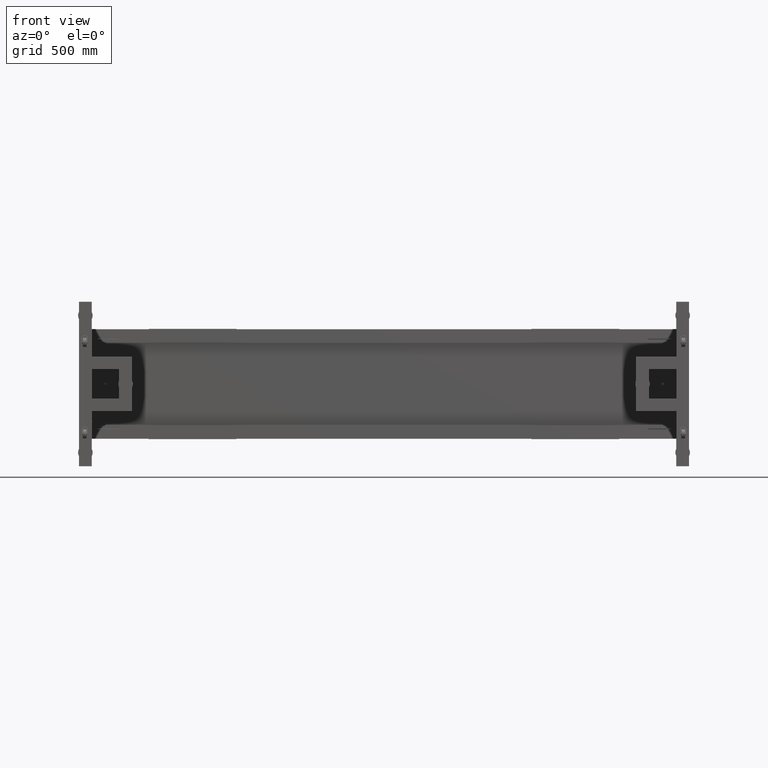
[diagram: clean part render]
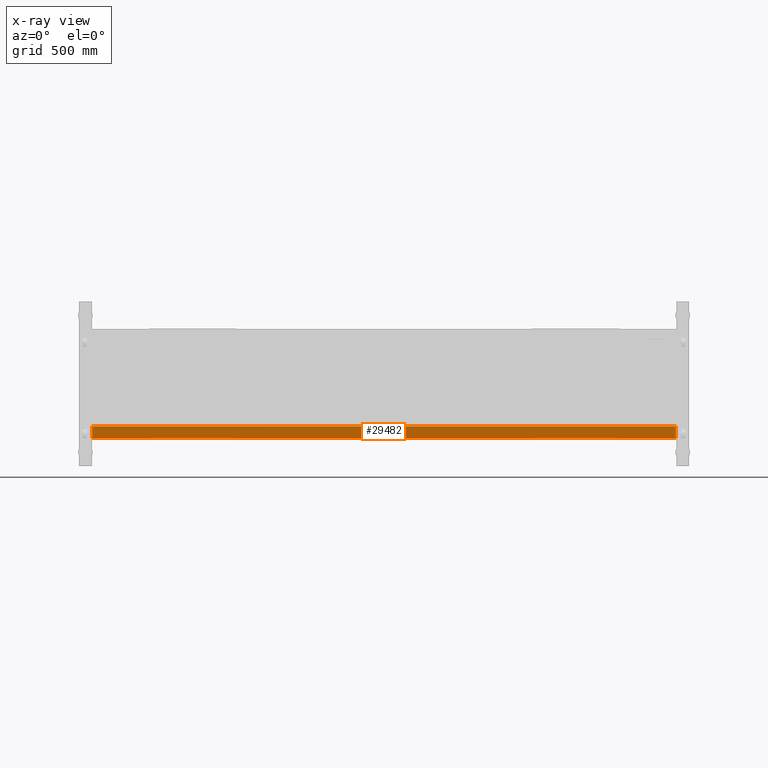
[diagram: x-ray — body ghosted, one internal face saturated and labeled with its STEP entity id]
A machine part, front view, then the same camera in x-ray: the body is ghosted and one INTERNAL B-rep face — a face not visible from any outside direction — is saturated and labeled: STEP entity #29482.
In plain terms, the highlighted planar face has unit normal (0, -1, -0).
Its self-contained STEP definition (entity closure, byte-faithful):
#4829 = CARTESIAN_POINT ( 'NONE',  ( 1929.827512562814718, 554.4410804020134265, -232.4999999999999147 ) ) ;
#12148 = VERTEX_POINT ( 'NONE', #38646 ) ;
#13832 = EDGE_CURVE ( 'NONE', #39517, #80249, #47157, .T. ) ;
#14170 = PLANE ( 'NONE',  #34813 ) ;
#16047 = EDGE_CURVE ( 'NONE', #12148, #74760, #35890, .T. ) ;
#16062 = DIRECTION ( 'NONE',  ( -1.000000000000000000, -4.543257172554223644E-16, 0.000000000000000000 ) ) ;
#20269 = DIRECTION ( 'NONE',  ( -1.362977151766267009E-30, 2.999999999999999839E-15, -1.000000000000000000 ) ) ;
#20764 = EDGE_CURVE ( 'NONE', #12148, #39517, #75962, .T. ) ;
#22837 = ORIENTED_EDGE ( 'NONE', *, *, #57818, .T. ) ;
#23253 = CARTESIAN_POINT ( 'NONE',  ( -1266.172487437185964, 554.4410804020125170, -297.4999999999999432 ) ) ;
#24826 = VECTOR ( 'NONE', #62902, 1000.000000000000000 ) ;
#26040 = ORIENTED_EDGE ( 'NONE', *, *, #13832, .F. ) ;
#29482 = ADVANCED_FACE ( 'NONE', ( #77599 ), #14170, .T. ) ;
#32946 = CARTESIAN_POINT ( 'NONE',  ( 1929.827512562814718, 554.4410804020134265, -232.4999999999999147 ) ) ;
#32974 = ORIENTED_EDGE ( 'NONE', *, *, #20764, .F. ) ;
#34813 = AXIS2_PLACEMENT_3D ( 'NONE', #32946, #39107, #64105 ) ;
#35890 = LINE ( 'NONE', #4829, #24826 ) ;
#38646 = CARTESIAN_POINT ( 'NONE',  ( 1929.827512562814718, 554.4410804020134265, -232.4999999999999147 ) ) ;
#39107 = DIRECTION ( 'NONE',  ( 4.543257172554223644E-16, -1.000000000000000000, -2.999999999999999839E-15 ) ) ;
#39517 = VERTEX_POINT ( 'NONE', #48486 ) ;
#42311 = VECTOR ( 'NONE', #20269, 1000.000000000000000 ) ;
#43586 = VECTOR ( 'NONE', #75420, 1000.000000000000000 ) ;
#47157 = LINE ( 'NONE', #72140, #70108 ) ;
#48486 = CARTESIAN_POINT ( 'NONE',  ( 1929.827512562814718, 554.4410804020136538, -297.4999999999999432 ) ) ;
#52668 = EDGE_LOOP ( 'NONE', ( #72518, #22837, #26040, #32974 ) ) ;
#57818 = EDGE_CURVE ( 'NONE', #74760, #80249, #62704, .T. ) ;
#62704 = LINE ( 'NONE', #68843, #43586 ) ;
#62902 = DIRECTION ( 'NONE',  ( -1.000000000000000000, -4.543257172554223644E-16, 0.000000000000000000 ) ) ;
#64105 = DIRECTION ( 'NONE',  ( -1.362977151766267009E-30, 2.999999999999999839E-15, -1.000000000000000000 ) ) ;
#68843 = CARTESIAN_POINT ( 'NONE',  ( -1266.172487437185964, 554.4410804020122896, -232.4999999999999147 ) ) ;
#70108 = VECTOR ( 'NONE', #16062, 1000.000000000000000 ) ;
#72140 = CARTESIAN_POINT ( 'NONE',  ( 1929.827512562814718, 554.4410804020136538, -297.4999999999999432 ) ) ;
#72518 = ORIENTED_EDGE ( 'NONE', *, *, #16047, .T. ) ;
#74635 = CARTESIAN_POINT ( 'NONE',  ( -1266.172487437185964, 554.4410804020122896, -232.4999999999999147 ) ) ;
#74760 = VERTEX_POINT ( 'NONE', #74635 ) ;
#75420 = DIRECTION ( 'NONE',  ( 0.000000000000000000, 2.999999999999999839E-15, -1.000000000000000000 ) ) ;
#75962 = LINE ( 'NONE', #76774, #42311 ) ;
#76774 = CARTESIAN_POINT ( 'NONE',  ( 1929.827512562814718, 554.4410804020134265, -232.4999999999999147 ) ) ;
#77599 = FACE_OUTER_BOUND ( 'NONE', #52668, .T. ) ;
#80249 = VERTEX_POINT ( 'NONE', #23253 ) ;